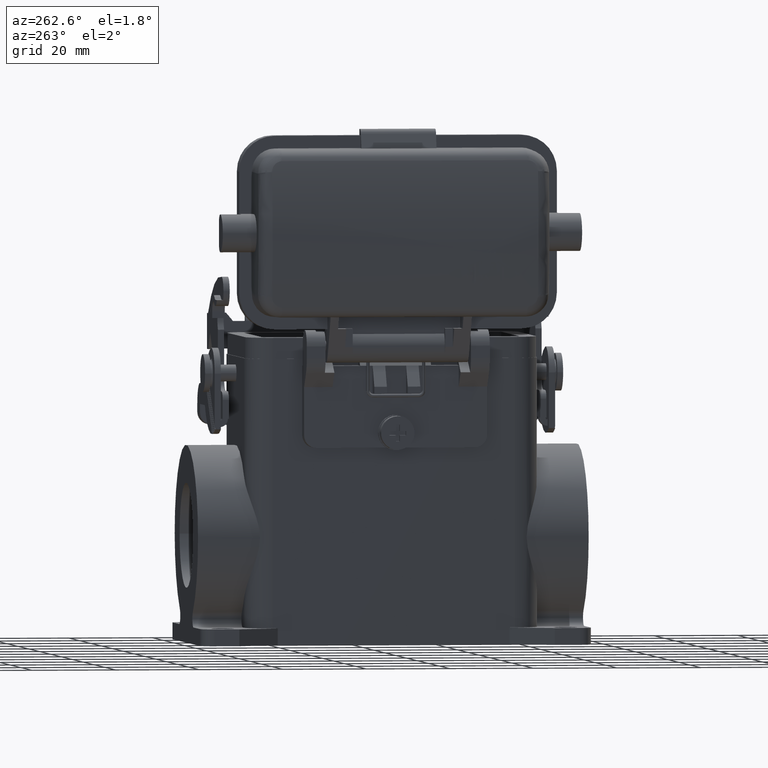
[diagram: clean part render]
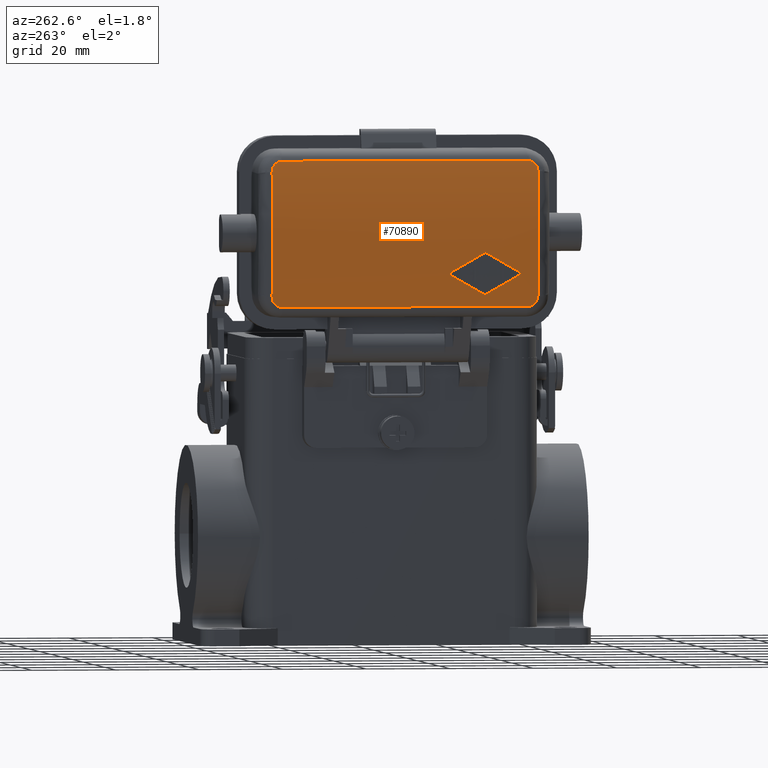
[diagram: same view with one face highlighted and labeled with its STEP entity id]
A machine part, auxiliary view. The second image highlights one B-rep face of the part: STEP entity #70890.
In plain terms, the highlighted cylindrical surface (partial cylindrical patch) has radius 99.3486 mm, axis along (0, 1, -0).
Its self-contained STEP definition (entity closure, byte-faithful):
#47000=CARTESIAN_POINT('',(-31.8262332956551,43.095542732012,
19.4525781131584));
#47010=VERTEX_POINT('',#47000);
#47100=CARTESIAN_POINT('',(-29.3337848544174,42.6719505225076,
16.8677394460729));
#47110=VERTEX_POINT('',#47100);
#47140=CARTESIAN_POINT('',(-31.8262332956551,43.095542732012,
19.4525781131584));
#47150=CARTESIAN_POINT('',(-31.8264618585014,43.0820425167682,
19.3627964796866));
#47160=CARTESIAN_POINT('',(-31.8221684461737,43.0684251577352,
19.2730749007949));
#47170=CARTESIAN_POINT('',(-31.8081207602347,43.0465904067448,
19.130519801153));
#47180=CARTESIAN_POINT('',(-31.8012753690627,43.0384175187461,
19.0774500608012));
#47190=CARTESIAN_POINT('',(-31.7844033957506,43.0220649547895,
18.9718311573269));
#47200=CARTESIAN_POINT('',(-31.7743817567444,43.0138893425554,
18.9193080166055));
#47210=CARTESIAN_POINT('',(-31.7511980676732,42.9975666788173,
18.8149893105406));
#47220=CARTESIAN_POINT('',(-31.7380360176081,42.9894196286047,
18.7631937449951));
#47230=CARTESIAN_POINT('',(-31.702404560426,42.9697651305532,
18.6388695681743));
#47240=CARTESIAN_POINT('',(-31.6783656381096,42.9582967761023,
18.5668555536236));
#47250=CARTESIAN_POINT('',(-31.6241878720476,42.935586181474,
18.4252207230757));
#47260=CARTESIAN_POINT('',(-31.594049028302,42.9243439524144,
18.3555999052957));
#47270=CARTESIAN_POINT('',(-31.5278605495368,42.9021914521875,
18.2193009436344));
#47280=CARTESIAN_POINT('',(-31.491857023288,42.8912941677927,
18.1527013884782));
#47290=CARTESIAN_POINT('',(-31.4142179617358,42.8699369932458,
18.0229641719517));
#47300=CARTESIAN_POINT('',(-31.3725824264324,42.8594771190705,
17.9598265079513));
#47310=CARTESIAN_POINT('',(-31.328246208344,42.8492843297638,
17.8986459861017));
#47320=CARTESIAN_POINT('',(-31.2662252340074,42.8350258577682,
17.8130618803944));
#47330=CARTESIAN_POINT('',(-31.1990720326572,42.8213223722903,
17.7315014801496));
#47340=CARTESIAN_POINT('',(-31.0552077959304,42.7952531434567,
17.5773956912692));
#47350=CARTESIAN_POINT('',(-30.9784967605538,42.7828874896946,
17.5048502874775));
#47360=CARTESIAN_POINT('',(-30.8569067573645,42.7655310326467,
17.403614606511));
#47370=CARTESIAN_POINT('',(-30.8154521565517,42.7599651708004,
17.3712546345751));
#47380=CARTESIAN_POINT('',(-30.7306128913607,42.7492706008519,
17.3092450898307));
#47390=CARTESIAN_POINT('',(-30.6872282269824,42.7441418946504,
17.2795955166944));
#47400=CARTESIAN_POINT('',(-30.5986492552073,42.7343463233399,
17.2231049642437));
#47410=CARTESIAN_POINT('',(-30.5535218870176,42.7296865722069,
17.1963048427683));
#47420=CARTESIAN_POINT('',(-30.461665595297,42.7208595638159,
17.1456470334962));
#47430=CARTESIAN_POINT('',(-30.414936671766,42.7166923090781,
17.1217893452604));
#47440=CARTESIAN_POINT('',(-30.32059735016,42.7089207498283,
17.0773806692131));
#47450=CARTESIAN_POINT('',(-30.273064694303,42.7053148836716,
17.0568196036132));
#47460=CARTESIAN_POINT('',(-30.1768011234957,42.6986302768465,
17.0187632730915));
#47470=CARTESIAN_POINT('',(-30.1280702085453,42.6955515381093,
17.0012680078304));
#47480=CARTESIAN_POINT('',(-30.0295735973584,42.6899391789775,
16.9694163450982));
#47490=CARTESIAN_POINT('',(-29.9798745780857,42.6874088898659,
16.9550787938379));
#47500=CARTESIAN_POINT('',(-29.8796689388563,42.6829094062166,
16.9296084984217));
#47510=CARTESIAN_POINT('',(-29.8291623188994,42.6809402130291,
16.9184757540272));
#47520=CARTESIAN_POINT('',(-29.7275026693961,42.6775744921995,
16.8994612384795));
#47530=CARTESIAN_POINT('',(-29.6764209661204,42.6761799772379,
16.8915908132014));
#47540=CARTESIAN_POINT('',(-29.6073918735485,42.674694232623,
16.8832089368479));
#47550=CARTESIAN_POINT('',(-29.5896197236985,42.6743470585498,
16.8812507287994));
#47560=CARTESIAN_POINT('',(-29.4927270758979,42.67264674471,
16.8716616408039));
#47570=CARTESIAN_POINT('',(-29.4132815756438,42.6719505202542,
16.8677394333735));
#47580=CARTESIAN_POINT('',(-29.3337848544174,42.6719505225076,
16.8677394460729));
#47590=B_SPLINE_CURVE_WITH_KNOTS('',3,(#47140,#47150,#47160,#47170,
#47180,#47190,#47200,#47210,#47220,#47230,#47240,#47250,#47260,#47270,
#47280,#47290,#47300,#47310,#47320,#47330,#47340,#47350,#47360,#47370,
#47380,#47390,#47400,#47410,#47420,#47430,#47440,#47450,#47460,#47470,
#47480,#47490,#47500,#47510,#47520,#47530,#47540,#47550,#47560,#47570,
#47580),.UNSPECIFIED.,.F.,.F.,(4,2,2,2,2,2,2,2,3,2,2,2,2,2,2,2,2,2,2,2,2
,4),(0.,0.42433170295675,0.677243189697563,0.930047519200905,
1.18285184870425,1.54219659371939,1.90154133873454,2.26040778460742,
2.6192742304803,3.12123429373261,3.62319435698492,3.87346317447417,
4.12373199196342,4.37372969727981,4.62372740259619,4.87057638418164,
5.11742536576709,5.36408455639422,5.61074374702134,5.85725989847509,
5.94257923707547,6.32186534588004),.UNSPECIFIED.);
#47600=EDGE_CURVE('',#47010,#47110,#47590,.T.);
#48270=CARTESIAN_POINT('',(-31.8262332979,43.0955427222521,
48.9979897436623));
#48280=VERTEX_POINT('',#48270);
#48510=CARTESIAN_POINT('',(-31.8262332956551,43.095542732012,
19.4525781131584));
#48520=CARTESIAN_POINT('',(-31.8258749867716,43.1167094023851,
19.5933446273896));
#48530=CARTESIAN_POINT('',(-31.8255220340152,43.1375736150333,
19.7341573050929));
#48540=CARTESIAN_POINT('',(-31.8234552139958,43.2596685163055,
20.5705704386929));
#48550=CARTESIAN_POINT('',(-31.8218612313537,43.3538311194798,
21.2672810396755));
#48560=CARTESIAN_POINT('',(-31.8118305499012,43.9463815351652,
26.0321976021475));
#48570=CARTESIAN_POINT('',(-31.8075373016579,44.2,30.126776824137));
#48580=CARTESIAN_POINT('',(-31.8075373016579,44.2,38.3237909677763));
#48590=CARTESIAN_POINT('',(-31.8118305499012,43.9463815351652,
42.4183701897659));
#48600=CARTESIAN_POINT('',(-31.8218612313539,43.3538311194721,
47.1832867523003));
#48610=CARTESIAN_POINT('',(-31.8234552139961,43.2596685162887,
47.8799973533451));
#48620=CARTESIAN_POINT('',(-31.8255220340423,43.1375736134369,
48.7164104977553));
#48630=CARTESIAN_POINT('',(-31.8258749889616,43.1167093959626,
48.8572232078685));
#48640=CARTESIAN_POINT('',(-31.8262332979,43.0955427222521,
48.9979897436623));
#48650=B_SPLINE_CURVE_WITH_KNOTS('',3,(#48510,#48520,#48530,#48540,
#48550,#48560,#48570,#48580,#48590,#48600,#48610,#48620,#48630,#48640),
.UNSPECIFIED.,.F.,.F.,(4,2,2,2,2,2,4),(0.,0.420578548930824,
2.4974364605879,14.6034535260291,26.7094705914704,28.7863285033133,
29.2069070843371),.UNSPECIFIED.);
#48660=EDGE_CURVE('',#47010,#48280,#48650,.T.);
#48810=CARTESIAN_POINT('',(29.3337848544173,42.6719505225076,
16.8677394460729));
#48820=VERTEX_POINT('',#48810);
#48850=CARTESIAN_POINT('',(-2.1316282072803E-14,42.6719505225076,
16.8677394460729));
#48860=DIRECTION('',(1.,-1.23259516440783E-32,-1.11022302462516E-16));
#48870=VECTOR('',#48860,1.);
#48880=LINE('',#48850,#48870);
#48890=EDGE_CURVE('',#47110,#48820,#48880,.T.);
#50820=CARTESIAN_POINT('',(31.8262332979,43.0955427222521,
19.4525780482511));
#50830=VERTEX_POINT('',#50820);
#50880=CARTESIAN_POINT('',(29.3337848544173,42.6719505225076,
16.8677394460729));
#50890=CARTESIAN_POINT('',(29.4132816371697,42.6719505201841,
16.8677394329785));
#50900=CARTESIAN_POINT('',(29.4927271426071,42.6726467456416,
16.8716616470648));
#50910=CARTESIAN_POINT('',(29.5899276355947,42.6743524627074,
16.8812812051288));
#50920=CARTESIAN_POINT('',(29.6080067526,42.6747062552309,
16.8832767485006));
#50930=CARTESIAN_POINT('',(29.6773405862552,42.6762033340518,
16.8917226234133));
#50940=CARTESIAN_POINT('',(29.7284203429078,42.6776013437687,
16.8996128391087));
#50950=CARTESIAN_POINT('',(29.830074882241,42.6809740226867,
16.9186668585636));
#50960=CARTESIAN_POINT('',(29.8805783450074,42.6829466749768,
16.9298192925177));
#50970=CARTESIAN_POINT('',(29.9807764282767,42.6874530161208,
16.9553287569069));
#50980=CARTESIAN_POINT('',(30.0304710487798,42.6899867036225,
16.9696857875809));
#50990=CARTESIAN_POINT('',(30.1289576538347,42.695605786176,
17.0015761583343));
#51000=CARTESIAN_POINT('',(30.1776829753782,42.6986878462407,
17.0190906309952));
#51010=CARTESIAN_POINT('',(30.2739341644443,42.7053789946374,
17.0571849949199));
#51020=CARTESIAN_POINT('',(30.321460031967,42.7089880810367,
17.0777648865233));
#51030=CARTESIAN_POINT('',(30.415784441243,42.7167659996596,
17.1222109790972));
#51040=CARTESIAN_POINT('',(30.4625052491668,42.7209363882997,
17.1460872300401));
#51050=CARTESIAN_POINT('',(30.5543441655278,42.7297695231363,
17.1967816029271));
#51060=CARTESIAN_POINT('',(30.5994622739652,42.7344322668111,
17.2235997253104));
#51070=CARTESIAN_POINT('',(30.6880216061403,42.7442336728335,
17.2801256840933));
#51080=CARTESIAN_POINT('',(30.7313959193178,42.749365218619,
17.3097926466962));
#51090=CARTESIAN_POINT('',(30.8162134278172,42.7600652977787,
17.3718362713998));
#51100=CARTESIAN_POINT('',(30.8576566231391,42.7656338292514,
17.4042129338284));
#51110=CARTESIAN_POINT('',(30.9792107857038,42.782998042404,
17.5054976713859));
#51120=CARTESIAN_POINT('',(31.055895986523,42.795368494906,
17.5780742089346));
#51130=CARTESIAN_POINT('',(31.1997050303282,42.8214465154165,
17.7322387431968));
#51140=CARTESIAN_POINT('',(31.2668288733143,42.8351539938381,
17.8138267550644));
#51150=CARTESIAN_POINT('',(31.3288188863153,42.8494160364036,
17.8994365529642));
#51160=CARTESIAN_POINT('',(31.3731314908641,42.8596110375283,
17.9606333963941));
#51170=CARTESIAN_POINT('',(31.4147428329233,42.8700728911153,
18.0237862722767));
#51180=CARTESIAN_POINT('',(31.4923325005542,42.8914335591567,
18.1535516165411));
#51190=CARTESIAN_POINT('',(31.5283108261259,42.9023323576425,
18.2201640875516));
#51200=CARTESIAN_POINT('',(31.5944479903173,42.9244874168559,
18.3564864747939));
#51210=CARTESIAN_POINT('',(31.6245607693552,42.9357306929714,
18.4261178107137));
#51220=CARTESIAN_POINT('',(31.6786858016603,42.958442937944,
18.5677713064927));
#51230=CARTESIAN_POINT('',(31.7026980549275,42.9699118956941,
18.6397934681329));
#51240=CARTESIAN_POINT('',(31.7382837393499,42.9895670813854,
18.7641296416037));
#51250=CARTESIAN_POINT('',(31.7514267987788,42.9977143229335,
18.8159296534829));
#51260=CARTESIAN_POINT('',(31.7745723398069,43.014037164163,
18.9202560647486));
#51270=CARTESIAN_POINT('',(31.784574821406,43.0222127625553,
18.9727824643368));
#51280=CARTESIAN_POINT('',(31.8014083572438,43.038565095562,
19.0784066638702));
#51290=CARTESIAN_POINT('',(31.8082344797617,43.0467377664312,
19.1314784391858));
#51300=CARTESIAN_POINT('',(31.8221991692947,43.0685227737451,
19.2737180633835));
#51310=CARTESIAN_POINT('',(31.8264610418499,43.0820909084594,
19.3631183034818));
#51320=CARTESIAN_POINT('',(31.8262332979,43.0955427222521,
19.4525780482511));
#51330=B_SPLINE_CURVE_WITH_KNOTS('',3,(#50880,#50890,#50900,#50910,
#50920,#50930,#50940,#50950,#50960,#50970,#50980,#50990,#51000,#51010,
#51020,#51030,#51040,#51050,#51060,#51070,#51080,#51090,#51100,#51110,
#51120,#51130,#51140,#51150,#51160,#51170,#51180,#51190,#51200,#51210,
#51220,#51230,#51240,#51250,#51260,#51270,#51280,#51290,#51300,#51310,
#51320),.UNSPECIFIED.,.F.,.F.,(4,2,2,2,2,2,2,2,2,2,2,2,2,3,2,2,2,2,2,2,2
,4),(0.,0.379284608198597,0.466079049479372,0.712599731224898,
0.959263671600194,1.20592761197549,1.45278150239347,1.69963539281146,
1.94963775606752,2.19964011932358,2.44991367666846,2.70018723401334,
3.20215685262033,3.70412647122732,4.06298775668109,4.42184904213487,
4.78118836351002,5.14052768488516,5.39332893876465,5.64613019264413,
5.89903840921822,6.32184760130602),.UNSPECIFIED.);
#51340=EDGE_CURVE('',#48820,#50830,#51330,.T.);
#52500=CARTESIAN_POINT('',(31.8262332956551,43.0955427320121,
48.9979896787547));
#52510=VERTEX_POINT('',#52500);
#52560=CARTESIAN_POINT('',(31.8262332979,43.0955427222521,
19.4525780482511));
#52570=CARTESIAN_POINT('',(31.8258749889616,43.1167093959624,
19.5933445840441));
#52580=CARTESIAN_POINT('',(31.8255220340422,43.1375736134369,
19.7341572941585));
#52590=CARTESIAN_POINT('',(31.8234552139961,43.2596685162887,
20.5705704385682));
#52600=CARTESIAN_POINT('',(31.8218612313538,43.353831119472,
21.267281039613));
#52610=CARTESIAN_POINT('',(31.8118305499012,43.9463815351652,
26.0321976021474));
#52620=CARTESIAN_POINT('',(31.8075373016579,44.2,30.126776824137));
#52630=CARTESIAN_POINT('',(31.8075373016579,44.2,38.3237909677763));
#52640=CARTESIAN_POINT('',(31.8118305499012,43.9463815351652,
42.4183701897658));
#52650=CARTESIAN_POINT('',(31.8218612313537,43.3538311194798,
47.1832867522379));
#52660=CARTESIAN_POINT('',(31.8234552139958,43.2596685163056,
47.8799973532205));
#52670=CARTESIAN_POINT('',(31.8255220340152,43.1375736150334,
48.71641048682));
#52680=CARTESIAN_POINT('',(31.8258749867716,43.116709402385,
48.8572231645243));
#52690=CARTESIAN_POINT('',(31.8262332956551,43.0955427320121,
48.9979896787547));
#52700=B_SPLINE_CURVE_WITH_KNOTS('',3,(#52560,#52570,#52580,#52590,
#52600,#52610,#52620,#52630,#52640,#52650,#52660,#52670,#52680,#52690),
.UNSPECIFIED.,.F.,.F.,(4,2,2,2,2,2,4),(0.,0.420578581022478,
2.49743649286531,14.6034535583065,26.7094706237477,28.7863285354048,
29.2069070843344),.UNSPECIFIED.);
#52710=EDGE_CURVE('',#50830,#52510,#52700,.T.);
#55310=CARTESIAN_POINT('',(29.3337848544173,42.6719505225076,
51.5828283458405));
#55320=VERTEX_POINT('',#55310);
#55350=CARTESIAN_POINT('',(31.8262332956551,43.0955427320121,
48.9979896787547));
#55360=CARTESIAN_POINT('',(31.826461858501,43.0820425167831,
49.0877713121275));
#55370=CARTESIAN_POINT('',(31.8221684461832,43.0684251577652,
49.1774928909205));
#55380=CARTESIAN_POINT('',(31.8081207602697,43.0465904067902,
49.3200479904654));
#55390=CARTESIAN_POINT('',(31.8012753691036,43.0384175187916,
49.3731177308178));
#55400=CARTESIAN_POINT('',(31.7844033958034,43.022064954835,
49.4787366342938));
#55410=CARTESIAN_POINT('',(31.7743817568031,43.0138893426008,
49.5312597750162));
#55420=CARTESIAN_POINT('',(31.7511980677436,42.9975666788627,
49.6355784810835));
#55430=CARTESIAN_POINT('',(31.7380360176843,42.9894196286501,
49.6873740466303));
#55440=CARTESIAN_POINT('',(31.7024045605094,42.9697651305945,
49.811698223479));
#55450=CARTESIAN_POINT('',(31.6783656381922,42.9582967761397,
49.8837122380557));
#55460=CARTESIAN_POINT('',(31.6241878721244,42.9355861815035,
50.0253470686547));
#55470=CARTESIAN_POINT('',(31.5940490283739,42.92434395244,
50.0949678864597));
#55480=CARTESIAN_POINT('',(31.5278605495947,42.9021914522053,
50.2312668481695));
#55490=CARTESIAN_POINT('',(31.491857023337,42.8912941678069,
50.2978664033491));
#55500=CARTESIAN_POINT('',(31.4142179617631,42.8699369932527,
50.4276036199203));
#55510=CARTESIAN_POINT('',(31.3725824264469,42.8594771190738,
50.4907412839419));
#55520=CARTESIAN_POINT('',(31.328246208344,42.8492843297638,
50.5519218058116));
#55530=CARTESIAN_POINT('',(31.2662252340215,42.8350258577714,
50.6375059114994));
#55540=CARTESIAN_POINT('',(31.1990720326878,42.8213223722966,
50.7190663117266));
#55550=CARTESIAN_POINT('',(31.0552077959981,42.7952531434683,
50.8731721005761));
#55560=CARTESIAN_POINT('',(30.9784967606421,42.7828874897085,
50.9457175043544));
#55570=CARTESIAN_POINT('',(30.8569067574863,42.7655310326634,
51.0469531853049));
#55580=CARTESIAN_POINT('',(30.815452156685,42.759965170818,
51.0793131572361));
#55590=CARTESIAN_POINT('',(30.7306128915177,42.7492706008709,
51.1413227019726));
#55600=CARTESIAN_POINT('',(30.6872282271516,42.7441418946701,
51.1709722751056));
#55610=CARTESIAN_POINT('',(30.5986492554015,42.7343463233604,
51.2274628275512));
#55620=CARTESIAN_POINT('',(30.5535218872245,42.7296865722279,
51.2542629490249));
#55630=CARTESIAN_POINT('',(30.4616655955298,42.7208595638373,
51.3049207582948));
#55640=CARTESIAN_POINT('',(30.414936672012,42.7166923090995,
51.3287784465303));
#55650=CARTESIAN_POINT('',(30.3205973504218,42.7089207498487,
51.3731871225836));
#55660=CARTESIAN_POINT('',(30.2730646945671,42.7053148836911,
51.3937481881892));
#55670=CARTESIAN_POINT('',(30.1768011237638,42.698630276864,
51.4318045187224));
#55680=CARTESIAN_POINT('',(30.1280702088153,42.6955515381257,
51.4492997839893));
#55690=CARTESIAN_POINT('',(30.0295735976317,42.6899391789919,
51.4811514467332));
#55700=CARTESIAN_POINT('',(29.9798745783606,42.6874088898793,
51.4954889979993));
#55710=CARTESIAN_POINT('',(29.8796689391337,42.682909406228,
51.5209592934274));
#55720=CARTESIAN_POINT('',(29.829162319178,42.6809402130394,
51.5320920378279));
#55730=CARTESIAN_POINT('',(29.7275026696766,42.6775744922077,
51.5511065533876));
#55740=CARTESIAN_POINT('',(29.6764209664016,42.676179977245,
51.5589769786717));
#55750=CARTESIAN_POINT('',(29.6073918737366,42.6746942326266,
51.5673588550447));
#55760=CARTESIAN_POINT('',(29.5896197237928,42.6743470585515,
51.5693170631046));
#55770=CARTESIAN_POINT('',(29.4927270758979,42.67264674471,
51.5789061511095));
#55780=CARTESIAN_POINT('',(29.4132815756438,42.6719505202542,
51.5828283585399));
#55790=CARTESIAN_POINT('',(29.3337848544173,42.6719505225076,
51.5828283458405));
#55800=B_SPLINE_CURVE_WITH_KNOTS('',3,(#55350,#55360,#55370,#55380,
#55390,#55400,#55410,#55420,#55430,#55440,#55450,#55460,#55470,#55480,
#55490,#55500,#55510,#55520,#55530,#55540,#55550,#55560,#55570,#55580,
#55590,#55600,#55610,#55620,#55630,#55640,#55650,#55660,#55670,#55680,
#55690,#55700,#55710,#55720,#55730,#55740,#55750,#55760,#55770,#55780,
#55790),.UNSPECIFIED.,.F.,.F.,(4,2,2,2,2,2,2,2,3,2,2,2,2,2,2,2,2,2,2,2,2
,4),(0.,0.424331702488621,0.677243189228481,0.930047518730937,
1.18285184823339,1.54219659336616,1.90154133849892,2.26040778448914,
2.61927423047937,3.12123429361665,3.62319435675392,3.87346317418605,
4.12373199161818,4.37372969687752,4.62372740213687,4.87057638372303,
5.11742536530918,5.36408455593695,5.61074374656471,5.85725989801905,
5.94257923707069,6.32186534587487),.UNSPECIFIED.);
#55810=EDGE_CURVE('',#52510,#55320,#55800,.T.);
#66850=CARTESIAN_POINT('',(-29.3337848544174,42.6719505225076,
51.5828283458405));
#66860=CARTESIAN_POINT('',(-29.4132816371697,42.6719505201841,
51.5828283589348));
#66870=CARTESIAN_POINT('',(-29.4927271426072,42.6726467456415,
51.5789061448486));
#66880=CARTESIAN_POINT('',(-29.5899276356072,42.6743524627077,
51.5692865867834));
#66890=CARTESIAN_POINT('',(-29.6080067526249,42.6747062552314,
51.56729104341));
#66900=CARTESIAN_POINT('',(-29.6773405862925,42.6762033340528,
51.5588451684948));
#66910=CARTESIAN_POINT('',(-29.728420342945,42.6776013437698,
51.5509549527985));
#66920=CARTESIAN_POINT('',(-29.8300748822779,42.680974022688,
51.5319009333421));
#66930=CARTESIAN_POINT('',(-29.8805783450442,42.6829466749783,
51.5207484993871));
#66940=CARTESIAN_POINT('',(-29.9807764283132,42.6874530161226,
51.4952390349964));
#66950=CARTESIAN_POINT('',(-30.030471048816,42.6899867036244,
51.4808820043216));
#66960=CARTESIAN_POINT('',(-30.1289576538705,42.6956057861782,
51.4489916335666));
#66970=CARTESIAN_POINT('',(-30.1776829754138,42.698687846243,
51.431477160905));
#66980=CARTESIAN_POINT('',(-30.2739341644793,42.70537899464,
51.3933827969788));
#66990=CARTESIAN_POINT('',(-30.3214600320016,42.7089880810394,
51.3728029053747));
#67000=CARTESIAN_POINT('',(-30.4157844412756,42.7167659996625,
51.3283568128));
#67010=CARTESIAN_POINT('',(-30.4625052491976,42.7209363883026,
51.3044805618571));
#67020=CARTESIAN_POINT('',(-30.5543441655552,42.7297695231391,
51.2537861889705));
#67030=CARTESIAN_POINT('',(-30.5994622739909,42.7344322668138,
51.2269680665873));
#67040=CARTESIAN_POINT('',(-30.6880216061627,42.7442336728361,
51.1704421078051));
#67050=CARTESIAN_POINT('',(-30.7313959193386,42.7493652186215,
51.1407751452026));
#67060=CARTESIAN_POINT('',(-30.8162134278349,42.760065297781,
51.0787315205001));
#67070=CARTESIAN_POINT('',(-30.8576566231553,42.7656338292536,
51.0463548580721));
#67080=CARTESIAN_POINT('',(-30.9792107857155,42.7829980424059,
50.9450701205167));
#67090=CARTESIAN_POINT('',(-31.055895986532,42.7953684949075,
50.8724935829698));
#67100=CARTESIAN_POINT('',(-31.1997050303323,42.8214465154173,
50.7183290487117));
#67110=CARTESIAN_POINT('',(-31.2668288733162,42.8351539938385,
50.6367410368464));
#67120=CARTESIAN_POINT('',(-31.3288188863153,42.8494160364036,
50.5511312389492));
#67130=CARTESIAN_POINT('',(-31.3731314908661,42.8596110375288,
50.4899343955167));
#67140=CARTESIAN_POINT('',(-31.4147428329269,42.8700728911162,
50.4267815196313));
#67150=CARTESIAN_POINT('',(-31.4923325005607,42.8914335591586,
50.2970161753609));
#67160=CARTESIAN_POINT('',(-31.5283108261337,42.9023323576449,
50.2304037043473));
#67170=CARTESIAN_POINT('',(-31.5944479903269,42.9244874168593,
50.0940813170986));
#67180=CARTESIAN_POINT('',(-31.6245607693655,42.9357306929753,
50.0244499811754));
#67190=CARTESIAN_POINT('',(-31.6786858016713,42.958442937949,
49.8827964853896));
#67200=CARTESIAN_POINT('',(-31.7026980549386,42.9699118956996,
49.810774323746));
#67210=CARTESIAN_POINT('',(-31.7382837393601,42.9895670813914,
49.6864381502715));
#67220=CARTESIAN_POINT('',(-31.7514267987882,42.9977143229396,
49.6346381383921));
#67230=CARTESIAN_POINT('',(-31.7745723398147,43.0140371641691,
49.5303117271261));
#67240=CARTESIAN_POINT('',(-31.784574821413,43.0222127625613,
49.4777853275378));
#67250=CARTESIAN_POINT('',(-31.8014083572492,43.038565095568,
49.3721611280041));
#67260=CARTESIAN_POINT('',(-31.8082344797663,43.0467377664372,
49.3190893526885));
#67270=CARTESIAN_POINT('',(-31.822199169296,43.0685227737491,
49.1768497285037));
#67280=CARTESIAN_POINT('',(-31.8264610418499,43.0820909084613,
49.0874494884185));
#67290=CARTESIAN_POINT('',(-31.8262332979,43.0955427222521,
48.9979897436623));
#67300=B_SPLINE_CURVE_WITH_KNOTS('',3,(#66850,#66860,#66870,#66880,
#66890,#66900,#66910,#66920,#66930,#66940,#66950,#66960,#66970,#66980,
#66990,#67000,#67010,#67020,#67030,#67040,#67050,#67060,#67070,#67080,
#67090,#67100,#67110,#67120,#67130,#67140,#67150,#67160,#67170,#67180,
#67190,#67200,#67210,#67220,#67230,#67240,#67250,#67260,#67270,#67280,
#67290),.UNSPECIFIED.,.F.,.F.,(4,2,2,2,2,2,2,2,2,2,2,2,2,3,2,2,2,2,2,2,2
,4),(0.,0.379284608198472,0.46607904953898,0.712599731284548,
0.959263671659926,1.2059276120353,1.45278150245331,1.69963539287133,
1.94963775611981,2.1996401193683,2.44991367670561,2.70018723404292,
3.20215685263464,3.70412647122636,4.06298775669571,4.42184904216506,
4.7811883635558,5.14052768494653,5.39332893882588,5.64613019270523,
5.89903840927916,6.32184760130477),.UNSPECIFIED.);
#67310=CARTESIAN_POINT('',(-29.3337848544174,42.6719505225076,
51.5828283458405));
#67320=VERTEX_POINT('',#67310);
#67330=EDGE_CURVE('',#67320,#48280,#67300,.T.);
#68010=CARTESIAN_POINT('',(-2.1316282072803E-14,42.6719505225076,
51.5828283458405));
#68020=DIRECTION('',(1.,-1.23259516440783E-32,-1.11022302462516E-16));
#68030=VECTOR('',#68020,1.);
#68040=LINE('',#68010,#68030);
#68050=EDGE_CURVE('',#67320,#55320,#68040,.T.);
#68500=CARTESIAN_POINT('',(-2.1316282072803E-14,-55.1486431583371,
34.2252838959567));
#68510=DIRECTION('',(1.,-1.23259516440783E-32,-1.11022302462516E-16));
#68520=DIRECTION('',(1.11022302462516E-16,1.11022302462516E-16,1.));
#68530=AXIS2_PLACEMENT_3D('',#68500,#68510,#68520);
#68540=CYLINDRICAL_SURFACE('',#68530,99.3486431583371);
#68550=ORIENTED_EDGE('',*,*,#47600,.F.);
#68560=ORIENTED_EDGE('',*,*,#48890,.F.);
#68570=ORIENTED_EDGE('',*,*,#51340,.F.);
#68580=ORIENTED_EDGE('',*,*,#52710,.F.);
#68590=ORIENTED_EDGE('',*,*,#55810,.F.);
#68600=ORIENTED_EDGE('',*,*,#68050,.T.);
#68610=ORIENTED_EDGE('',*,*,#67330,.F.);
#68620=ORIENTED_EDGE('',*,*,#48660,.T.);
#68630=EDGE_LOOP('',(#68620,#68610,#68600,#68590,#68580,#68570,#68560,
#68550));
#68640=FACE_OUTER_BOUND('',#68630,.T.);
#68650=CARTESIAN_POINT('',(-44.5639144942535,-55.1486431583371,
34.2252838959567));
#68660=DIRECTION('',(-0.496245838467037,0.,-0.868182047616828));
#68670=DIRECTION('',(-0.868182047616828,1.97030198066233E-32,
0.496245838467037));
#68680=AXIS2_PLACEMENT_3D('',#68650,#68660,#68670);
#68690=ELLIPSE('',#68680,200.200456018406,99.3486431583371);
#68700=CARTESIAN_POINT('',(-27.6826057952215,43.7303002998782,
24.5760643425598));
#68710=VERTEX_POINT('',#68700);
#68720=CARTESIAN_POINT('',(-19.2654151140743,43.1419933118819,
19.7648662089791));
#68730=VERTEX_POINT('',#68720);
#68740=EDGE_CURVE('',#68710,#68730,#68690,.T.);
#68750=ORIENTED_EDGE('',*,*,#68740,.T.);
#68760=CARTESIAN_POINT('',(-27.5998063664127,45.6906206695147,
24.7209219354566));
#68770=DIRECTION('',(-0.,1.,-0.));
#68780=DIRECTION('',(-0.49624583846366,-0.,-0.868182047618758));
#68790=AXIS2_PLACEMENT_3D('',#68760,#68770,#68780);
#68800=CYLINDRICAL_SURFACE('',#68790,0.166851633587759);
#68810=CARTESIAN_POINT('',(-27.6826057952215,43.7303002998782,
24.5760643425598));
#68820=CARTESIAN_POINT('',(-27.6889326025033,43.7306532058873,
24.5796806944448));
#68830=CARTESIAN_POINT('',(-27.6950589974537,43.7310486027201,
24.5837345054496));
#68840=CARTESIAN_POINT('',(-27.7009042209995,43.731482506544,
24.588186516563));
#68850=CARTESIAN_POINT('',(-27.7067493094319,43.7319164003382,
24.5926384247675));
#68860=CARTESIAN_POINT('',(-27.712309338837,43.7323885360916,
24.5974858331551));
#68870=CARTESIAN_POINT('',(-27.7175138140462,43.7328926592152,
24.6026661770238));
#68880=CARTESIAN_POINT('',(-27.7227184078,43.7333967938214,
24.6078466388875));
#68890=CARTESIAN_POINT('',(-27.7275642539638,43.7339325763997,
24.6133565658452));
#68900=CARTESIAN_POINT('',(-27.732002694398,43.7344924915934,
24.6191201746756));
#68910=CARTESIAN_POINT('',(-27.7364409972498,43.7350523894309,
24.6248836048461));
#68920=CARTESIAN_POINT('',(-27.7405270414655,43.7356433658742,
24.6309722131407));
#68930=CARTESIAN_POINT('',(-27.7442020012996,43.7362588036153,
24.6373194937666));
#68940=CARTESIAN_POINT('',(-27.7478768765886,43.7368742271978,
24.643666628369));
#68950=CARTESIAN_POINT('',(-27.7511381889691,43.7375137347061,
24.6502685628352));
#68960=CARTESIAN_POINT('',(-27.7539451369167,43.738169083238,
24.6570415232912));
#68970=CARTESIAN_POINT('',(-27.7567521464112,43.7388244461395,
24.6638146322555));
#68980=CARTESIAN_POINT('',(-27.75910321684,43.7394952319433,
24.670754455382));
#68990=CARTESIAN_POINT('',(-27.7609822432413,43.7401728872971,
24.6777733044302));
#69000=CARTESIAN_POINT('',(-27.7628607289959,43.7408503476712,
24.6847901339659));
#69010=CARTESIAN_POINT('',(-27.7642845645017,43.7415408663936,
24.6919500867321));
#69020=CARTESIAN_POINT('',(-27.7652336038437,43.7422360254145,
24.6991665511382));
#69030=CARTESIAN_POINT('',(-27.7661828965501,43.7429313700214,
24.7063849421182));
#69040=CARTESIAN_POINT('',(-27.7666572844121,43.7436297046639,
24.7136426796178));
#69050=CARTESIAN_POINT('',(-27.7666579991924,43.7443277192021,
24.7209055145593));
#69060=CARTESIAN_POINT('',(-27.766658713833,43.7450255972933,
24.7281669297703));
#69070=CARTESIAN_POINT('',(-27.7661849454214,43.7457228607275,
24.7354303917461));
#69080=CARTESIAN_POINT('',(-27.7652386414883,43.746414062879,
24.7426389793216));
#69090=CARTESIAN_POINT('',(-27.7642934153828,43.7471044777605,
24.7498393564109));
#69100=CARTESIAN_POINT('',(-27.7628781926232,43.7477890032547,
24.7569866045895));
#69110=CARTESIAN_POINT('',(-27.7609851351477,43.7484656735344,
24.7640597627082));
#69120=CARTESIAN_POINT('',(-27.7590934080287,43.7491418682803,
24.7711279501261));
#69130=CARTESIAN_POINT('',(-27.7567282551517,43.749807689392,
24.778095759477));
#69140=CARTESIAN_POINT('',(-27.7539153931027,43.750454712787,
24.7848740700854));
#69150=CARTESIAN_POINT('',(-27.7511025044221,43.751101742308,
24.7916524448693));
#69160=CARTESIAN_POINT('',(-27.7478437631751,43.7517295692598,
24.7982370643042));
#69170=CARTESIAN_POINT('',(-27.7441868719238,43.7523309507979,
24.8045505027005));
#69180=CARTESIAN_POINT('',(-27.7405342698301,43.7529316269772,
24.8108565360824));
#69190=CARTESIAN_POINT('',(-27.736481811529,43.7535073340525,
24.8169068060424));
#69200=CARTESIAN_POINT('',(-27.7320065876116,43.7540598584075,
24.822718640442));
#69210=CARTESIAN_POINT('',(-27.7275365452499,43.7546117430324,
24.828523745716));
#69220=CARTESIAN_POINT('',(-27.7226660838201,43.7551370339421,
24.8340545735038));
#69230=CARTESIAN_POINT('',(-27.7174534751235,43.7556289163852,
24.8392377224121));
#69240=CARTESIAN_POINT('',(-27.7122408183667,43.7561208033634,
24.844420919109));
#69250=CARTESIAN_POINT('',(-27.7066894525146,43.7565789703196,
24.8492531333612));
#69260=CARTESIAN_POINT('',(-27.7008738401791,43.756998475363,
24.8536804883915));
#69270=CARTESIAN_POINT('',(-27.6950648834424,43.7574175003096,
24.8581027765954));
#69280=CARTESIAN_POINT('',(-27.6889851720246,43.7577990914846,
24.8621331281552));
#69290=CARTESIAN_POINT('',(-27.682605795221,43.7581441486795,
24.8657795283536));
#69300=B_SPLINE_CURVE_WITH_KNOTS('',3,(#68810,#68820,#68830,#68840,
#68850,#68860,#68870,#68880,#68890,#68900,#68910,#68920,#68930,#68940,
#68950,#68960,#68970,#68980,#68990,#69000,#69010,#69020,#69030,#69040,
#69050,#69060,#69070,#69080,#69090,#69100,#69110,#69120,#69130,#69140,
#69150,#69160,#69170,#69180,#69190,#69200,#69210,#69220,#69230,#69240,
#69250,#69260,#69270,#69280,#69290),.UNSPECIFIED.,.F.,.F.,(4,3,3,3,3,3,3
,3,3,3,3,3,3,3,3,3,4),(0.,0.0219972277120748,0.0440933522928723,
0.0660914678678879,0.0880880916219448,0.110184245872486,
0.132184990708847,0.154109426028432,0.176010623475322,0.197905509555037,
0.219856230325838,0.241944105258257,0.26399006165262,0.285947257553026,
0.308034420007064,0.330081153146038,0.352038309661844),.UNSPECIFIED.);
#69310=SURFACE_CURVE('',#69300,(#68540,#68800),.CURVE_3D.);
#69320=CARTESIAN_POINT('',(-27.6826057952212,43.7581441486795,
24.8657795283539));
#69330=VERTEX_POINT('',#69320);
#69340=EDGE_CURVE('',#68710,#69330,#69310,.T.);
#69350=ORIENTED_EDGE('',*,*,#69340,.F.);
#69360=CARTESIAN_POINT('',(-11.308153786423,-55.1486431583371,
34.2252838959567));
#69370=DIRECTION('',(-0.496245838467023,0.,0.868182047616836));
#69380=DIRECTION('',(0.868182047616836,-9.85150990331147E-33,
0.496245838467023));
#69390=AXIS2_PLACEMENT_3D('',#69360,#69370,#69380);
#69400=ELLIPSE('',#69390,200.200456018412,99.3486431583371);
#69410=CARTESIAN_POINT('',(-19.2654151140741,44.0958317901665,
29.6769776619349));
#69420=VERTEX_POINT('',#69410);
#69430=EDGE_CURVE('',#69420,#69330,#69400,.T.);
#69440=ORIENTED_EDGE('',*,*,#69430,.T.);
#69450=CARTESIAN_POINT('',(-19.0999999999987,45.6906206695147,
29.3875839354582));
#69460=DIRECTION('',(-0.,1.,-0.));
#69470=DIRECTION('',(-0.496245838472594,0.,0.868182047613651));
#69480=AXIS2_PLACEMENT_3D('',#69450,#69460,#69470);
#69490=CYLINDRICAL_SURFACE('',#69480,0.333332999998934);
#69500=CARTESIAN_POINT('',(-19.2654151140739,44.0958317901665,
29.6769776619344));
#69510=CARTESIAN_POINT('',(-19.2403490320337,44.0964884128665,
29.6913052317493));
#69520=CARTESIAN_POINT('',(-19.2135049892155,44.0969905498679,
29.7023266300431));
#69530=CARTESIAN_POINT('',(-19.1855693206319,44.0973281468046,
29.7097465966321));
#69540=CARTESIAN_POINT('',(-19.1716264258345,44.0974966438842,
29.713449955771));
#69550=CARTESIAN_POINT('',(-19.157486680576,44.0976233975787,
29.7162401367664));
#69560=CARTESIAN_POINT('',(-19.143160875435,44.0977083532089,
29.7181108295971));
#69570=CARTESIAN_POINT('',(-19.1288448444084,44.0977932508762,
29.719980246104));
#69580=CARTESIAN_POINT('',(-19.1143986228295,44.0978357530586,
29.7209170045408));
#69590=CARTESIAN_POINT('',(-19.0999984007755,44.097835749923,
29.7209169354533));
#69600=CARTESIAN_POINT('',(-19.0855981715291,44.0978357467874,
29.7209168663656));
#69610=CARTESIAN_POINT('',(-19.0711519561049,44.0977932382707,
29.7199799683627));
#69620=CARTESIAN_POINT('',(-19.0568359448787,44.0977083343519,
29.718110414372));
#69630=CARTESIAN_POINT('',(-19.042510160336,44.0976233724705,
29.7162395840661));
#69640=CARTESIAN_POINT('',(-19.0283704502953,44.0974966126921,
29.7134492695303));
#69650=CARTESIAN_POINT('',(-19.0144275821199,44.0973281093743,
29.7097457739596));
#69660=CARTESIAN_POINT('',(-18.9864919806487,44.0969905001053,
29.7023255376774));
#69670=CARTESIAN_POINT('',(-18.9596480551227,44.0964883514526,
29.6913038866684));
#69680=CARTESIAN_POINT('',(-18.9345821021882,44.0958317172439,
29.676976070756));
#69690=B_SPLINE_CURVE_WITH_KNOTS('',3,(#69500,#69510,#69520,#69530,
#69540,#69550,#69560,#69570,#69580,#69590,#69600,#69610,#69620,#69630,
#69640,#69650,#69660,#69670,#69680),.UNSPECIFIED.,.F.,.F.,(4,3,3,3,3,3,4
),(0.,0.0865647883190634,0.129822280104074,0.173106527954317,
0.2163907840943,0.259648274002271,0.346213064696107),.UNSPECIFIED.);
#69700=SURFACE_CURVE('',#69690,(#68540,#69490),.CURVE_3D.);
#69710=CARTESIAN_POINT('',(-18.9345821021886,44.0958317172438,
29.6769760707556));
#69720=VERTEX_POINT('',#69710);
#69730=EDGE_CURVE('',#69420,#69720,#69700,.T.);
#69740=ORIENTED_EDGE('',*,*,#69730,.F.);
#69750=CARTESIAN_POINT('',(-26.8916685538267,-55.1486431583371,
34.2252838959567));
#69760=DIRECTION('',(0.496254189687405,-0.,0.868177274073502));
#69770=DIRECTION('',(0.868177274073502,-1.97032364754537E-32,
-0.496254189687405));
#69780=AXIS2_PLACEMENT_3D('',#69750,#69760,#69770);
#69790=ELLIPSE('',#69780,200.197086942314,99.3486431583371);
#69800=CARTESIAN_POINT('',(-10.5172995510944,43.7581288634856,
24.8656180031062));
#69810=VERTEX_POINT('',#69800);
#69820=EDGE_CURVE('',#69810,#69720,#69790,.T.);
#69830=ORIENTED_EDGE('',*,*,#69820,.T.);
#69840=CARTESIAN_POINT('',(-10.6000084999995,45.6906206695147,
24.7209219354568));
#69850=DIRECTION('',(-0.,1.,-0.));
#69860=DIRECTION('',(0.496254189685306,0.,0.868177274074702));
#69870=AXIS2_PLACEMENT_3D('',#69840,#69850,#69860);
#69880=CYLINDRICAL_SURFACE('',#69870,0.166666499999813);
#69890=CARTESIAN_POINT('',(-10.5172995510944,43.7581288634856,
24.8656180031062));
#69900=CARTESIAN_POINT('',(-10.510979412253,43.7577869968562,
24.8620053821899));
#69910=CARTESIAN_POINT('',(-10.5048593922351,43.7574035698516,
24.8579556769554));
#69920=CARTESIAN_POINT('',(-10.4990202269531,43.7569821408638,
24.8535080996268));
#69930=CARTESIAN_POINT('',(-10.4931811965587,43.7565607216112,
24.8490606250393));
#69940=CARTESIAN_POINT('',(-10.4876269085412,43.7561015543289,
24.8442179783794));
#69950=CARTESIAN_POINT('',(-10.4824278369032,43.7556104064435,
24.8390426782924));
#69960=CARTESIAN_POINT('',(-10.4772286465922,43.7551192473473,
24.833867260075));
#69970=CARTESIAN_POINT('',(-10.4723878668669,43.7545964354506,
24.8283626601896));
#69980=CARTESIAN_POINT('',(-10.4679541339899,43.7540490177573,
24.8226046116608));
#69990=CARTESIAN_POINT('',(-10.463520481373,43.7535016099733,
24.8168466673649));
#70000=CARTESIAN_POINT('',(-10.4594387965946,43.752922805176,
24.8107638368543));
#70010=CARTESIAN_POINT('',(-10.4557678803491,43.7523187702316,
24.8044226292567));
#70020=CARTESIAN_POINT('',(-10.4520970484931,43.7517147491731,
24.798081567435));
#70030=CARTESIAN_POINT('',(-10.4488394658345,43.7510858654044,
24.7914860057687));
#70040=CARTESIAN_POINT('',(-10.44603588853,43.7504399790541,
24.784719718643));
#70050=CARTESIAN_POINT('',(-10.4432322495553,43.7497940784963,
24.7779532826791));
#70060=CARTESIAN_POINT('',(-10.4408841910857,43.7491315864809,
24.7710204376977));
#70070=CARTESIAN_POINT('',(-10.4390077543212,43.7484608027357,
24.7640088489366));
#70080=CARTESIAN_POINT('',(-10.4371318132161,43.7477901961775,
24.7569991122817));
#70090=CARTESIAN_POINT('',(-10.4357101362525,43.7471051680565,
24.7498465546383));
#70100=CARTESIAN_POINT('',(-10.4347627927966,43.7464139491371,
24.7426377931003));
#70110=CARTESIAN_POINT('',(-10.4338151986469,43.7457225473017,
24.7354271239211));
#70120=CARTESIAN_POINT('',(-10.4333420293112,43.7450265969037,
24.7281773438911));
#70130=CARTESIAN_POINT('',(-10.433342000001,43.7443293620904,
24.7209226088121));
#70140=CARTESIAN_POINT('',(-10.4333419706968,43.7436322660169,
24.713669317322));
#70150=CARTESIAN_POINT('',(-10.4338158905166,43.7429341811413,
24.7064141607559));
#70160=CARTESIAN_POINT('',(-10.4347617499422,43.7422405975613,
24.6992140148362));
#70170=CARTESIAN_POINT('',(-10.4357065318271,43.7415478041245,
24.6920220714559));
#70180=CARTESIAN_POINT('',(-10.4371207187462,43.7408593467049,
24.6848833760278));
#70190=CARTESIAN_POINT('',(-10.4390120837961,43.7401772843753,
24.6778188474951));
#70200=CARTESIAN_POINT('',(-10.4409021204788,43.7394957010801,
24.67075928061));
#70210=CARTESIAN_POINT('',(-10.4432649326319,43.7388230422679,
24.6638001153671));
#70220=CARTESIAN_POINT('',(-10.4460748148282,43.7381679959817,
24.6570302866147));
#70230=CARTESIAN_POINT('',(-10.448884723523,43.7375129435182,
24.6502603940195));
#70240=CARTESIAN_POINT('',(-10.4521398513404,43.7368759155526,
24.6436840805435));
#70250=CARTESIAN_POINT('',(-10.4557925670227,43.7362645357497,
24.6373786119784));
#70260=CARTESIAN_POINT('',(-10.4594410302843,43.7356538677033,
24.6310804841175));
#70270=CARTESIAN_POINT('',(-10.4634886236517,43.7350673878899,
24.62503806462));
#70280=CARTESIAN_POINT('',(-10.4679584739919,43.734503512668,
24.6192336231807));
#70290=CARTESIAN_POINT('',(-10.4724231343582,43.7339402921654,
24.613435921318));
#70300=CARTESIAN_POINT('',(-10.4772876731673,43.7334031598978,
24.6079120942212));
#70310=CARTESIAN_POINT('',(-10.4824939521061,43.7328993972062,
24.6027354165319));
#70320=CARTESIAN_POINT('',(-10.4877002788144,43.7323956298924,
24.5975586913447));
#70330=CARTESIAN_POINT('',(-10.4932449176272,43.7319255546953,
24.5927324099826));
#70340=CARTESIAN_POINT('',(-10.4990535677585,43.7314945787775,
24.5883103828741));
#70350=CARTESIAN_POINT('',(-10.504855661716,43.7310640892984,
24.5838933468699));
#70360=CARTESIAN_POINT('',(-10.5109278084134,43.7306714767902,
24.5798679857198));
#70370=CARTESIAN_POINT('',(-10.5172995510942,43.7303160623789,
24.5762258678075));
#70380=B_SPLINE_CURVE_WITH_KNOTS('',3,(#69890,#69900,#69910,#69920,
#69930,#69940,#69950,#69960,#69970,#69980,#69990,#70000,#70010,#70020,
#70030,#70040,#70050,#70060,#70070,#70080,#70090,#70100,#70110,#70120,
#70130,#70140,#70150,#70160,#70170,#70180,#70190,#70200,#70210,#70220,
#70230,#70240,#70250,#70260,#70270,#70280,#70290,#70300,#70310,#70320,
#70330,#70340,#70350,#70360,#70370),.UNSPECIFIED.,.F.,.F.,(4,3,3,3,3,3,3
,3,3,3,3,3,3,3,3,3,4),(0.,0.0219726616904099,0.044044072380433,
0.0660174828655395,0.0879896289373969,0.110061076338625,
0.132036986925697,0.153936971144676,0.175813620177464,0.197684038927518,
0.219610205075941,0.241673364752312,0.263694763085882,0.285627339192727,
0.307689746231245,0.329711987956491,0.351644488243403),.UNSPECIFIED.);
#70390=SURFACE_CURVE('',#70380,(#68540,#69880),.CURVE_3D.);
#70400=CARTESIAN_POINT('',(-10.5172995510943,43.7303160623788,
24.5762258678077));
#70410=VERTEX_POINT('',#70400);
#70420=EDGE_CURVE('',#69810,#70410,#70390,.T.);
#70430=ORIENTED_EDGE('',*,*,#70420,.F.);
#70440=CARTESIAN_POINT('',(6.36334966122199,-55.1486431583371,
34.2252838959567));
#70450=DIRECTION('',(0.496254189687411,0.,-0.868177274073499));
#70460=DIRECTION('',(-0.868177274073499,9.8516182377269E-33,
-0.496254189687411));
#70470=AXIS2_PLACEMENT_3D('',#70440,#70450,#70460);
#70480=ELLIPSE('',#70470,200.197086942312,99.3486431583371);
#70490=CARTESIAN_POINT('',(-18.9345821021877,43.1419935459746,
19.7648678001584));
#70500=VERTEX_POINT('',#70490);
#70510=EDGE_CURVE('',#70500,#70410,#70480,.T.);
#70520=ORIENTED_EDGE('',*,*,#70510,.T.);
#70530=CARTESIAN_POINT('',(-19.099999999999,45.6906206695147,
20.0542599354585));
#70540=DIRECTION('',(-0.,1.,-0.));
#70550=DIRECTION('',(0.496254189685977,0.,-0.868177274074318));
#70560=AXIS2_PLACEMENT_3D('',#70530,#70540,#70550);
#70570=CYLINDRICAL_SURFACE('',#70560,0.333333000001332);
#70580=CARTESIAN_POINT('',(-18.9345821021877,43.1419935459746,
19.7648678001584));
#70590=CARTESIAN_POINT('',(-18.9596087095887,43.1398889613396,
19.750562474337));
#70600=CARTESIAN_POINT('',(-18.9864347691804,43.1382640552395,
19.7395383456084));
#70610=CARTESIAN_POINT('',(-19.0143757651119,43.1371689504757,
19.7321118649991));
#70620=CARTESIAN_POINT('',(-19.0283206892141,43.1366224004224,
19.7284054220112));
#70630=CARTESIAN_POINT('',(-19.0424663492871,43.1362102096349,
19.7256115056678));
#70640=CARTESIAN_POINT('',(-19.056802039986,43.135933763606,
19.7237378860569));
#70650=CARTESIAN_POINT('',(-19.0639643391391,43.1357956475431,
19.722801801118));
#70660=CARTESIAN_POINT('',(-19.0711606788149,43.1356918369078,
19.7220983090493));
#70670=CARTESIAN_POINT('',(-19.0783678901345,43.1356226701016,
19.721629598983));
#70680=CARTESIAN_POINT('',(-19.0855751181056,43.1355535031356,
19.7211608878337));
#70690=CARTESIAN_POINT('',(-19.092792915186,43.1355189817062,
19.7209269701129));
#70700=CARTESIAN_POINT('',(-19.0999983969674,43.1355189765925,
19.720926935461));
#70710=CARTESIAN_POINT('',(-19.1072038750891,43.1355189714787,
19.7209269008091));
#70720=CARTESIAN_POINT('',(-19.114421671875,43.1355534826276,
19.721160748868));
#70730=CARTESIAN_POINT('',(-19.121628903037,43.1356226393283,
19.7216293904474));
#70740=CARTESIAN_POINT('',(-19.1288361175432,43.1356917958692,
19.7220980309438));
#70750=CARTESIAN_POINT('',(-19.1360324638911,43.1357955962551,
19.7228014535396));
#70760=CARTESIAN_POINT('',(-19.1431947731688,43.135933702154,
19.7237374695644));
#70770=CARTESIAN_POINT('',(-19.1575304849674,43.1362101278553,
19.7256109513494));
#70780=CARTESIAN_POINT('',(-19.1716761809752,43.136622298928,
19.7284047339399));
#70790=CARTESIAN_POINT('',(-19.1856211323168,43.1371688288776,
19.7321110403783));
#70800=CARTESIAN_POINT('',(-19.2135621968376,43.1382638939093,
19.7395372511118));
#70810=CARTESIAN_POINT('',(-19.2403883758721,43.1398887629996,
19.7505611277844));
#70820=CARTESIAN_POINT('',(-19.2654151140742,43.141993311882,
19.7648662089795));
#70830=B_SPLINE_CURVE_WITH_KNOTS('',3,(#70580,#70590,#70600,#70610,
#70620,#70630,#70640,#70650,#70660,#70670,#70680,#70690,#70700,#70710,
#70720,#70730,#70740,#70750,#70760,#70770,#70780,#70790,#70800,#70810,
#70820),.UNSPECIFIED.,.F.,.F.,(4,3,3,3,3,3,3,3,4),(0.,0.0866366616225894
,0.129930098901521,0.151604889511882,0.173250940328624,0.194896983461341
,0.216571773287522,0.259865212509737,0.346501871780225),.UNSPECIFIED.);
#70840=SURFACE_CURVE('',#70830,(#68540,#70570),.CURVE_3D.);
#70850=EDGE_CURVE('',#70500,#68730,#70840,.T.);
#70860=ORIENTED_EDGE('',*,*,#70850,.F.);
#70870=EDGE_LOOP('',(#70860,#70520,#70430,#69830,#69740,#69440,#69350,
#68750));
#70880=FACE_BOUND('',#70870,.T.);
#70890=ADVANCED_FACE('',(#68640,#70880),#68540,.T.);